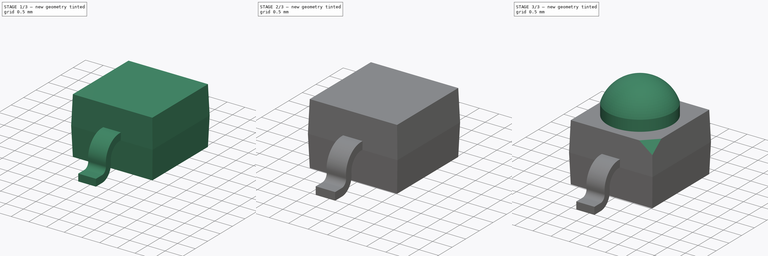
[diagram: build sequence overview — one tinted view per stage of 3, left to right]
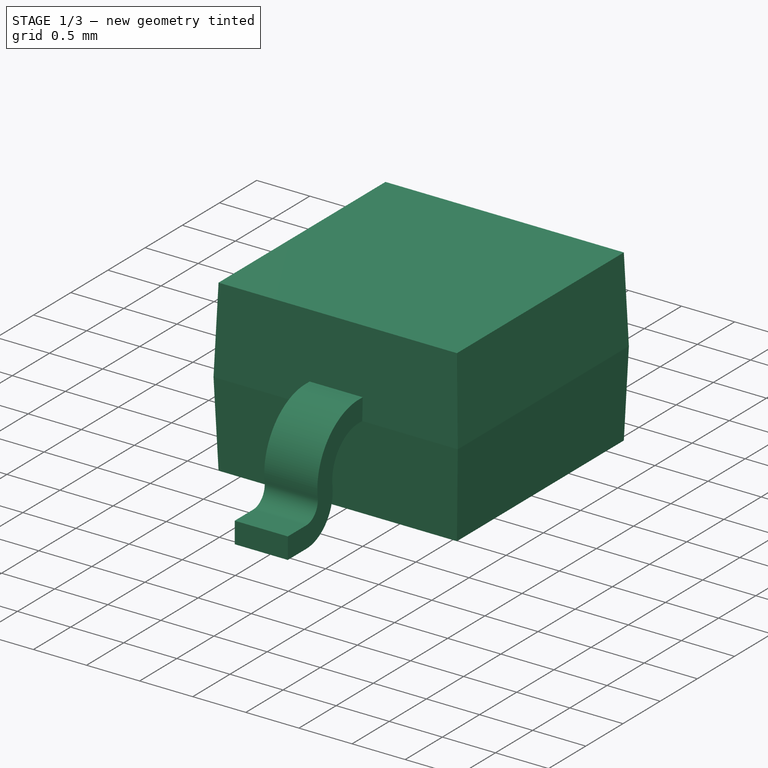
[diagram: stage 1 of 3 — iso view after this stage's code; geometry added in this stage tinted green]
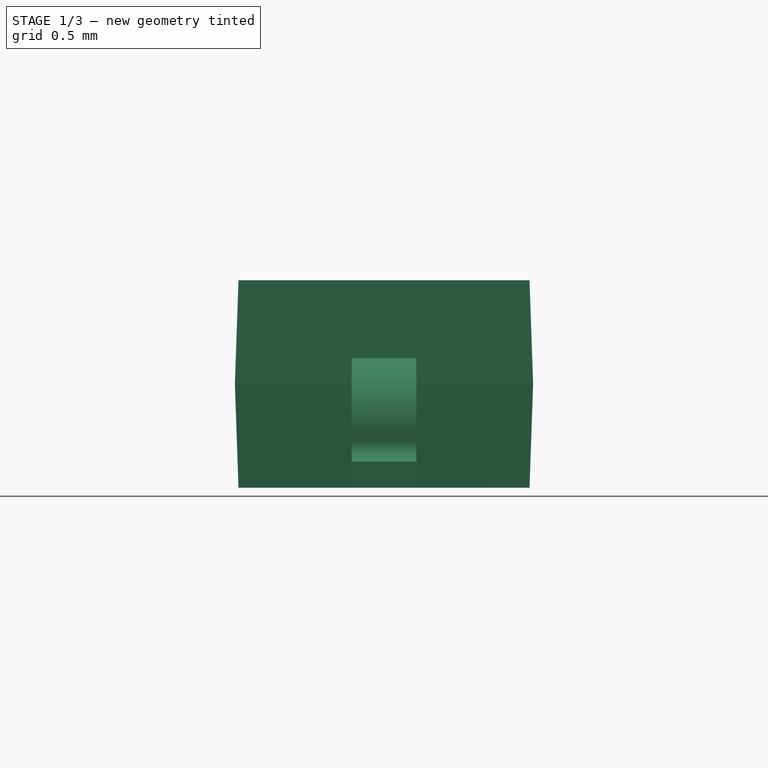
[diagram: stage 1 of 3 — front view after this stage's code; geometry added in this stage tinted green]
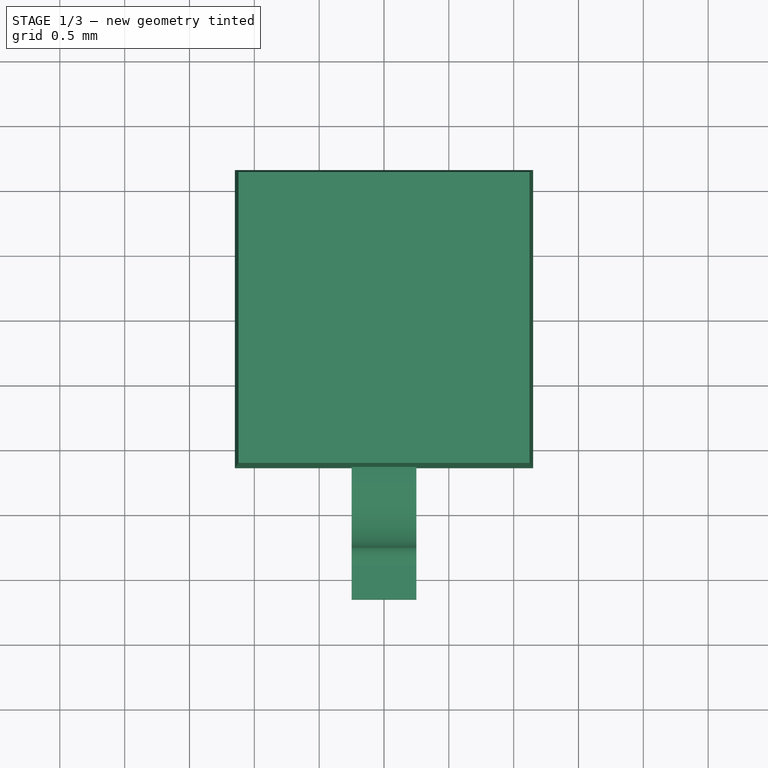
[diagram: stage 1 of 3 — top view after this stage's code; geometry added in this stage tinted green]
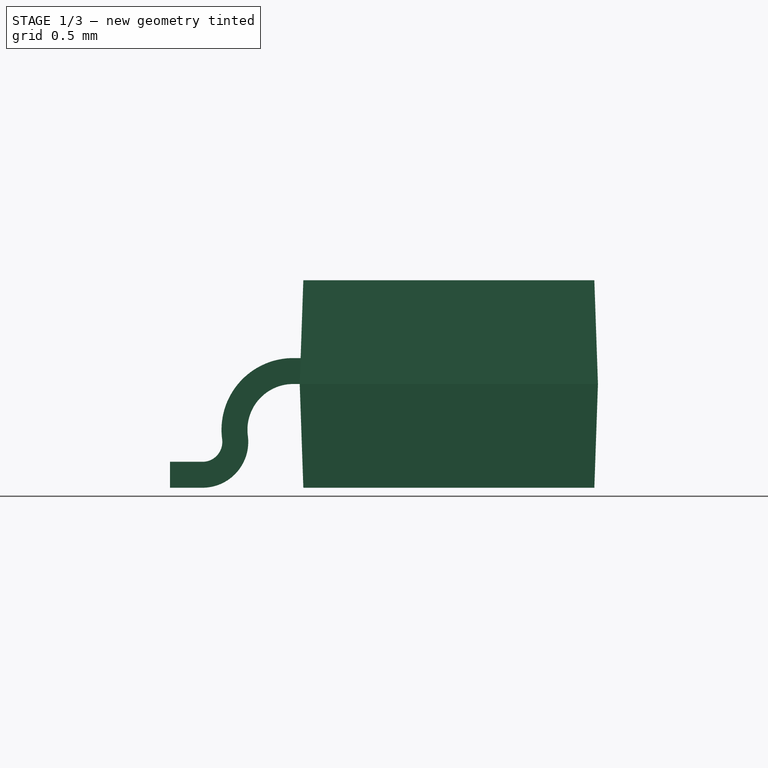
[diagram: stage 1 of 3 — right view after this stage's code; geometry added in this stage tinted green]
FCSTD DOCUMENT  (FreeCAD 0.21R33668 +26 (Git))
Label: VxMx
License: All rights reserved
LicenseURL: http://en.wikipedia.org/wiki/All_rights_reserved
objects: PartDesign::Plane×3, Sketcher::SketchObject×3, PartDesign::Pad×2, PartDesign::Mirrored×1, PartDesign::Pocket×1, PartDesign::Revolution×1, PartDesign::Body×1
note: 16 computed .brp shape members not serialized (recipe doc carries the construction recipe); baked Part::Feature solids carry a one-line shape summary decoded from their .brp

FEATURE [PartDesign::Plane] DatumPlane
  AttachmentOffset = pos=(0,0,0.8) rot=(0,0,1;0rad)
  Length = 60
  MapMode = 2
  Placement = pos=(0,0,0.8) rot=(0,0,1;0rad)
  ResizeMode = 0
  Support = -> [XY_Plane]
  Width = 60
FEATURE [Sketcher::SketchObject] Sketch
  FullyConstrained = true
  MapMode = 5
  Placement = pos=(0,0,0.8) rot=(0,0,1;0rad)
  Support = -> [DatumPlane]
  sketch-geometry (4):
    g0: LineSegment StartX=-1.15 StartY=1.15 StartZ=0 EndX=1.15 EndY=1.15 EndZ=0
    g1: LineSegment StartX=1.15 StartY=1.15 StartZ=0 EndX=1.15 EndY=-1.15 EndZ=0
    g2: LineSegment StartX=1.15 StartY=-1.15 StartZ=0 EndX=-1.15 EndY=-1.15 EndZ=0
    g3: LineSegment StartX=-1.15 StartY=-1.15 StartZ=0 EndX=-1.15 EndY=1.15 EndZ=0
  constraints (11):
    c: Coincident(g0,g1)
    c: Coincident(g1,g2)
    c: Coincident(g2,g3)
    c: Coincident(g3,g0)
    c: Horizontal(g0)
    c: Horizontal(g2)
    c: Vertical(g1)
    c: Vertical(g3)
    c: Symmetric(g0,g1,g-1)
    c: DistanceX(g0,g0) = 2.3
    c: DistanceY(g1,g1) = 2.3
FEATURE [PartDesign::Pad] Pad
  Direction = (0,0,1)
  Length = 1.6
  Length2 = 10
  Midplane = true
  Placement = pos=(0,0,0.8) rot=(0,0,1;0rad)
  Profile = -> Sketch
  ReferenceAxis = -> Sketch [N_Axis]
  TaperAngle = -2
  Type = 0
FEATURE [Sketcher::SketchObject] Sketch001
  FullyConstrained = true
  MapMode = 5
  Placement = pos=(0,0,0) rot=(1,0,0;1.5708rad)
  Support = -> [XZ_Plane]
  sketch-geometry (7):
    g0: LineSegment StartX=0 StartY=0 StartZ=0 EndX=0.9 EndY=0 EndZ=0
    g1: LineSegment StartX=0.9 StartY=0 StartZ=0 EndX=0.9 EndY=1.9 EndZ=0
    g2: LineSegment StartX=0.9 StartY=1.9 StartZ=0 EndX=0 EndY=1.9 EndZ=0
    g3: LineSegment StartX=0 StartY=1.9 StartZ=0 EndX=0 EndY=0 EndZ=0
    g4: LineSegment StartX=0 StartY=1.9 StartZ=0 EndX=1e-16 EndY=2.55 EndZ=0
    g5: GeomPoint X=0 Y=1.60192 Z=0
    g6: ArcOfCircle CenterX=0 CenterY=1.60192 CenterZ=0 NormalX=0 NormalY=0 NormalZ=1 AngleXU=0 Radius=0.948077 StartAngle=0.319826 EndAngle=1.5708
  constraints (18):
    c: Coincident(g0,g1)
    c: Coincident(g1,g2)
    c: Coincident(g2,g3)
    c: Coincident(g3,g0)
    c: Horizontal(g0)
    c: Horizontal(g2)
    c: Vertical(g1)
    c: Vertical(g3)
    c: Coincident(g0,g-1)
    c: Coincident(g4,g2)
    c: PointOnObject(g4,g-2)
    c: DistanceY(g0,g4) = 2.55
    c: DistanceY(g0,g1) = 1.9
    c: DistanceX(g2,g2) = 0.9
    c: PointOnObject(g5,g3)
    c: Coincident(g6,g5)
    c: Coincident(g6,g4)
    c: Coincident(g6,g1)
FEATURE [Sketcher::SketchObject] Sketch002
  FullyConstrained = true
  MapMode = 5
  Placement = pos=(0,0,0) rot=(0.57735,0.57735,0.57735;2.0944rad)
  Support = -> [YZ_Plane]
  sketch-geometry (12):
    g0: LineSegment StartX=-1.1 StartY=1 StartZ=0 EndX=-1.2 EndY=1 EndZ=0
    g1: ArcOfCircle CenterX=-1.2 CenterY=0.446876 CenterZ=0 NormalX=0 NormalY=0 NormalZ=1 AngleXU=0 Radius=0.553124 StartAngle=1.5708 EndAngle=3.27473
    g2: ArcOfCircle CenterX=-1.9 CenterY=0.353124 CenterZ=0 NormalX=0 NormalY=0 NormalZ=1 AngleXU=0 Radius=0.153124 StartAngle=4.71238 EndAngle=6.41632
    g3: ArcOfCircle CenterX=-1.9 CenterY=0.353124 CenterZ=0 NormalX=0 NormalY=0 NormalZ=1 AngleXU=0 Radius=0.353124 StartAngle=4.71239 EndAngle=6.41632
    g4: ArcOfCircle CenterX=-1.2 CenterY=0.446876 CenterZ=0 NormalX=0 NormalY=0 NormalZ=1 AngleXU=0 Radius=0.353124 StartAngle=1.5708 EndAngle=3.27473
    g5: LineSegment StartX=-1.2 StartY=0.8 StartZ=0 EndX=-1.1 EndY=0.8 EndZ=0
    g6: LineSegment StartX=-1.1 StartY=0.8 StartZ=0 EndX=-1.1 EndY=1 EndZ=0
    g7: LineSegment StartX=-1.2 StartY=0.8 StartZ=0 EndX=-1.2 EndY=1 EndZ=0
    g8: LineSegment StartX=-1.9 StartY=0.2 StartZ=0 EndX=-2.15 EndY=0.2 EndZ=0
    g9: LineSegment StartX=-2.15 StartY=0.2 StartZ=0 EndX=-2.15 EndY=0 EndZ=0
    g10: LineSegment StartX=-2.15 StartY=0 StartZ=0 EndX=-1.9 EndY=0 EndZ=0
    g11: LineSegment StartX=-1.9 StartY=0 StartZ=0 EndX=-1.9 EndY=0.2 EndZ=0
  constraints (33):
    c: Horizontal(g0)
    c: Tangent(g1,g2) = 1.5708
    c: Coincident(g4,g1)
    c: Coincident(g5,g4)
    c: Horizontal(g5)
    c: Coincident(g6,g5)
    c: Coincident(g6,g0)
    c: Vertical(g6)
    c: Tangent(g3,g4) = 1.5708
    c: DistanceY(g6,g6) = 0.2
    c: Coincident(g3,g2)
    c: DistanceY(g3,g0) = 1
    c: Tangent(g1,g0) = -1.5708
    c: DistanceY(g3,g3) = 0.4
    c: DistanceX(g5,g-1) = 1.1
    c: Coincident(g7,g4)
    c: Coincident(g7,g0)
    c: Vertical(g7)
    c: Coincident(g8,g9)
    c: Coincident(g9,g10)
    c: Horizontal(g8)
    c: Horizontal(g10)
    c: Vertical(g9)
    c: Coincident(g8,g2)
    c: DistanceX(g8,g0) = 1.05
    c: DistanceX(g9,g3) = 0.6
    c: DistanceX(g8,g8) = 0.25
    c: Coincident(g10,g3)
    c: Coincident(g11,g3)
    c: Coincident(g11,g2)
    c: Vertical(g11)
    c: PointOnObject(g9,g-1)
    c: DistanceY(g9,g9) = 0.2
FEATURE [PartDesign::Pad] Pad001
  BaseFeature = -> Pad
  Direction = (1,-2e-16,3e-16)
  Length = 0.5
  Length2 = 10
  Midplane = true
  Placement = pos=(0,0,0.8) rot=(0,0,1;0rad)
  Profile = -> Sketch002
  ReferenceAxis = -> Sketch002 [N_Axis]
  Type = 0
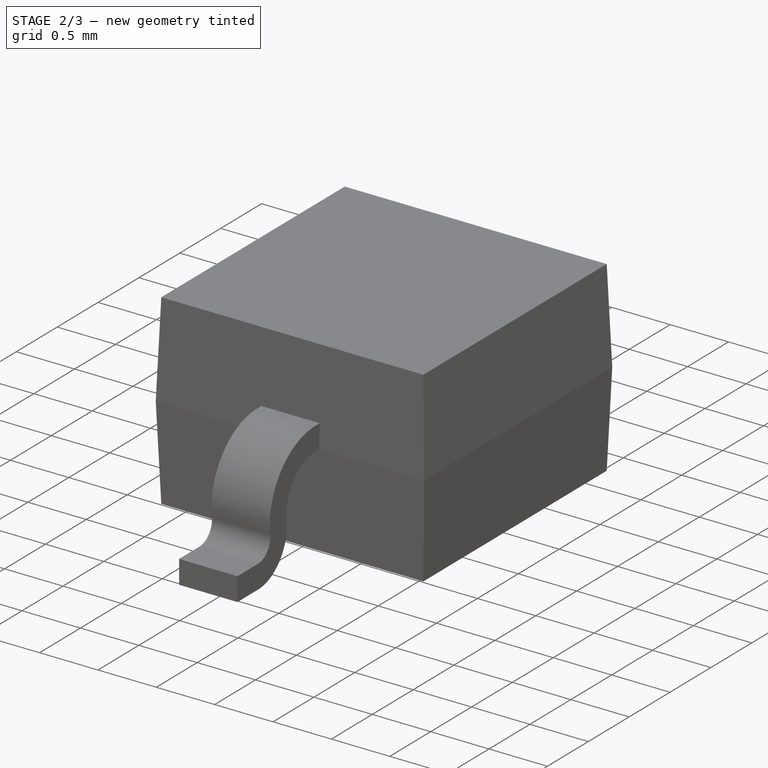
[diagram: stage 2 of 3 — iso view after this stage's code; geometry added in this stage tinted green]
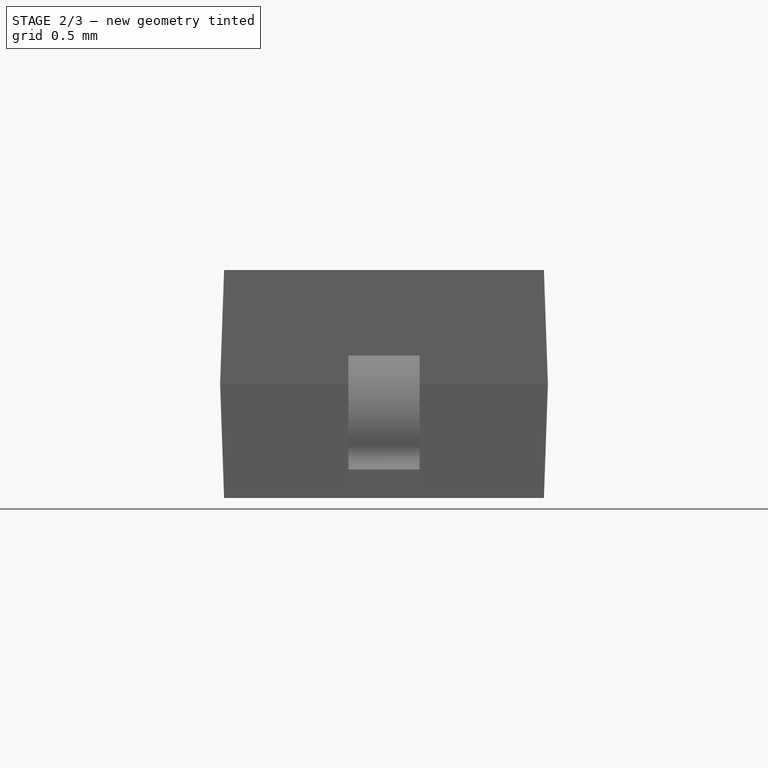
[diagram: stage 2 of 3 — front view after this stage's code; geometry added in this stage tinted green]
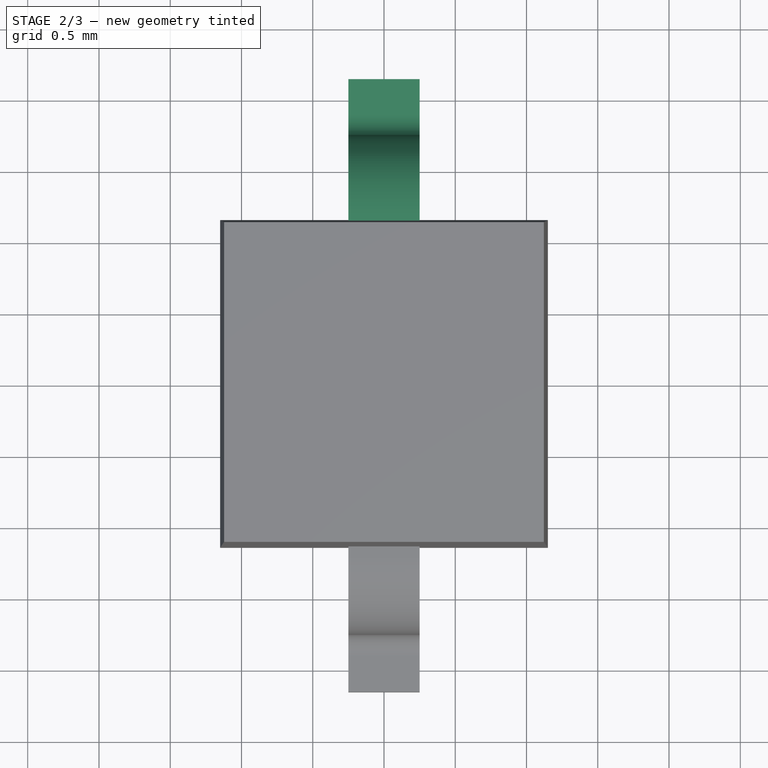
[diagram: stage 2 of 3 — top view after this stage's code; geometry added in this stage tinted green]
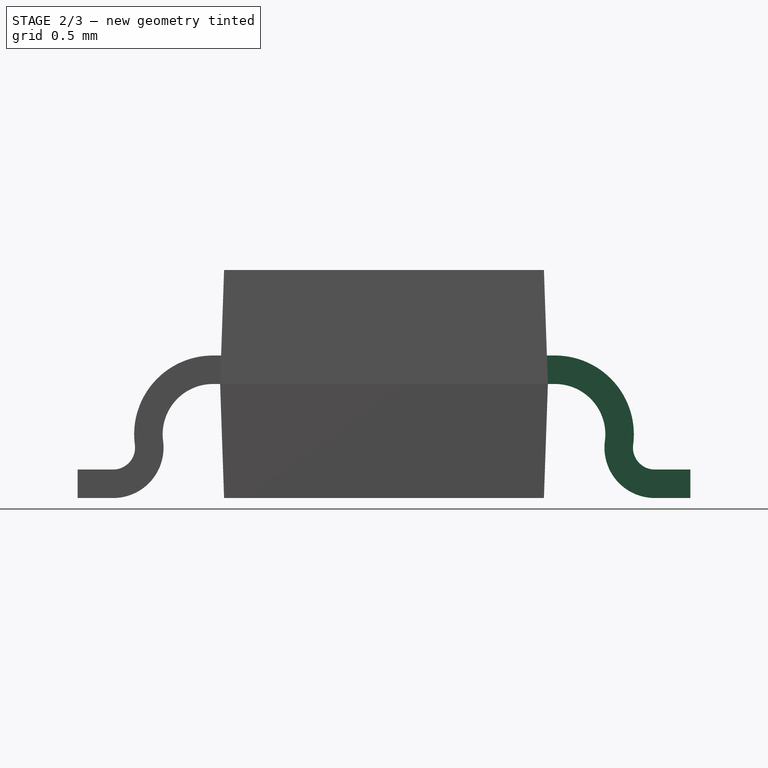
[diagram: stage 2 of 3 — right view after this stage's code; geometry added in this stage tinted green]
FEATURE [PartDesign::Mirrored] Mirrored
  BaseFeature = -> Pad001
  MirrorPlane = -> Sketch002 [V_Axis]
  Originals = -> [Pad001]
  Placement = pos=(0,0,0.8) rot=(0,0,1;0rad)
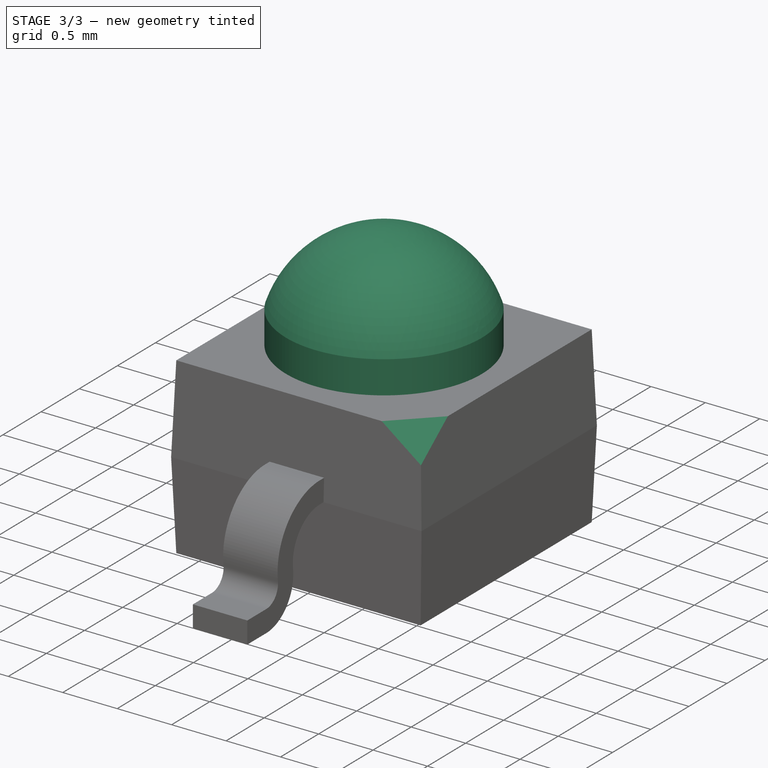
[diagram: stage 3 of 3 — iso view after this stage's code; geometry added in this stage tinted green]
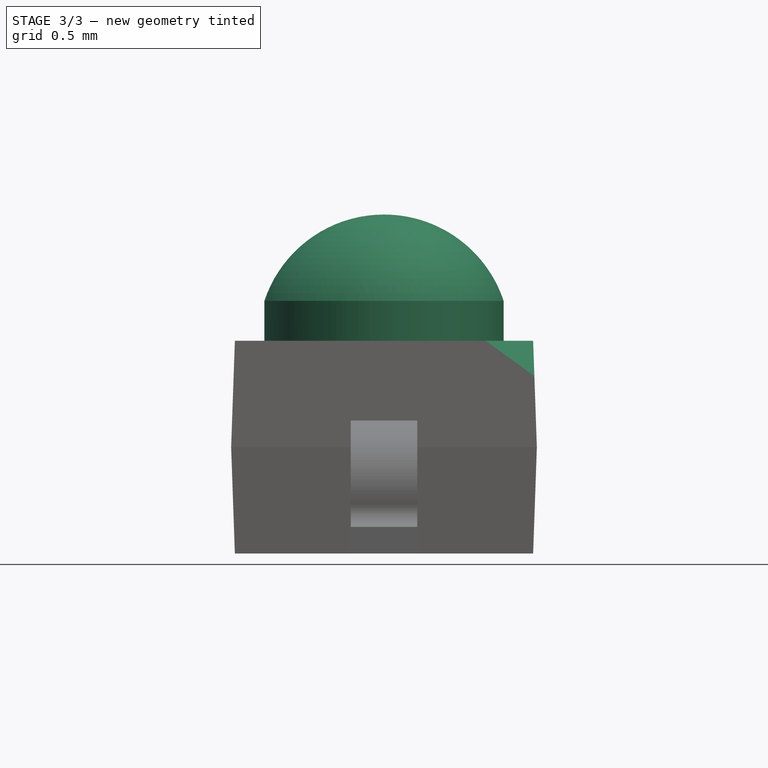
[diagram: stage 3 of 3 — front view after this stage's code; geometry added in this stage tinted green]
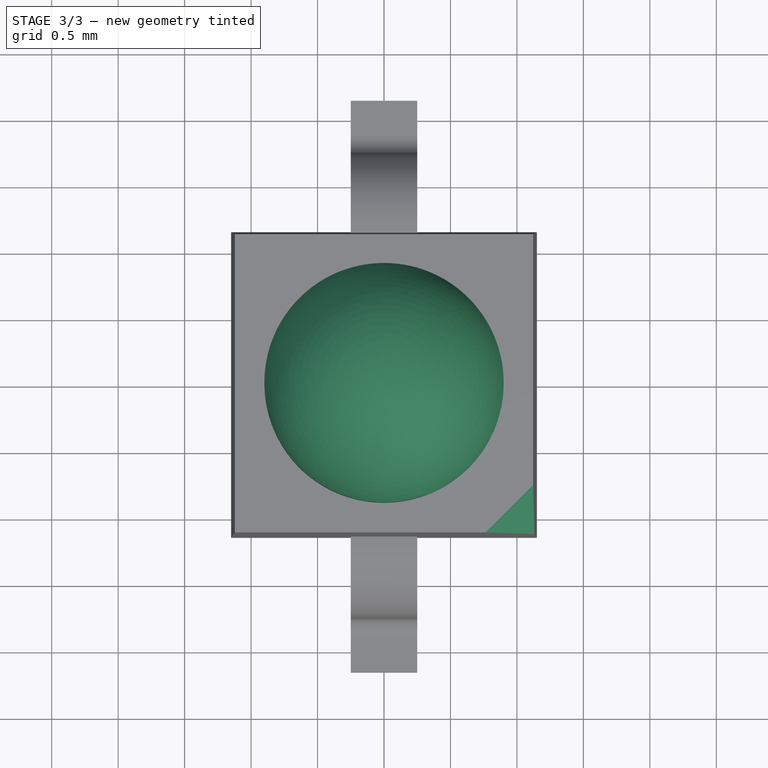
[diagram: stage 3 of 3 — top view after this stage's code; geometry added in this stage tinted green]
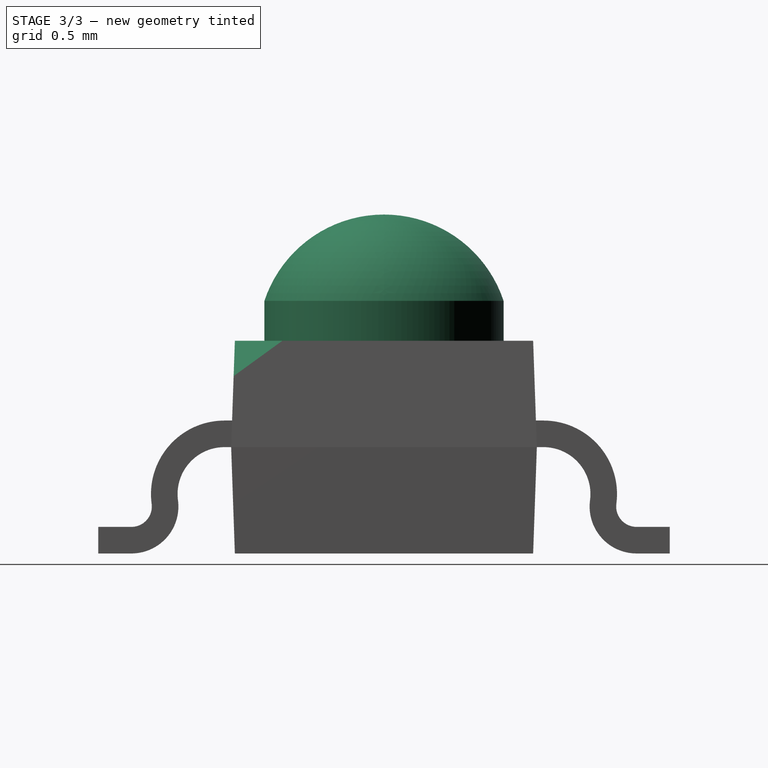
[diagram: stage 3 of 3 — right view after this stage's code; geometry added in this stage tinted green]
FEATURE [PartDesign::Plane] DatumPlane001
  AttachmentOffset = pos=(1.15,0,0) rot=(-0.678598,0.678598,0.281085;1.09606rad)
  Length = 86.2484
  MapMode = 5
  Placement = pos=(1.15,0,0) rot=(0.678598,0.281085,0.678598;1.09606rad)
  ResizeMode = 0
  Support = -> [XZ_Plane]
  Width = 100.893
FEATURE [PartDesign::Plane] DatumPlane002
  AttachmentOffset = pos=(0,0,1.5) rot=(0,0,1;0rad)
  Length = 86.2484
  MapMode = 2
  Placement = pos=(1.9,-0.75,1.06066) rot=(0.678598,0.281085,0.678598;1.09606rad)
  ResizeMode = 0
  Support = -> [DatumPlane001]
  Width = 100.893
FEATURE [PartDesign::Pocket] Pocket
  BaseFeature = -> Mirrored
  Direction = (-0.5,0.5,-0.707107)
  Length = 5
  Length2 = 5
  Placement = pos=(0,0,0.8) rot=(0,0,1;0rad)
  Profile = -> DatumPlane002
  Reversed = true
  Type = 1
FEATURE [PartDesign::Revolution] Revolution
  Angle = 360
  Axis = (0,2e-16,1)
  Base = (0,0,0)
  BaseFeature = -> Pocket
  Placement = pos=(0,0,0.8) rot=(0,0,1;0rad)
  Profile = -> Sketch001
  ReferenceAxis = -> Sketch001 [V_Axis]
  Reversed = true
FEATURE [PartDesign::Body] Body
  Group = -> [DatumPlane,Sketch,Pad,Sketch001,Sketch002,Pad001,Mirrored,DatumPlane001,DatumPlane002,Pocket,Revolution]
  Origin = -> Origin
  Tip = -> Revolution
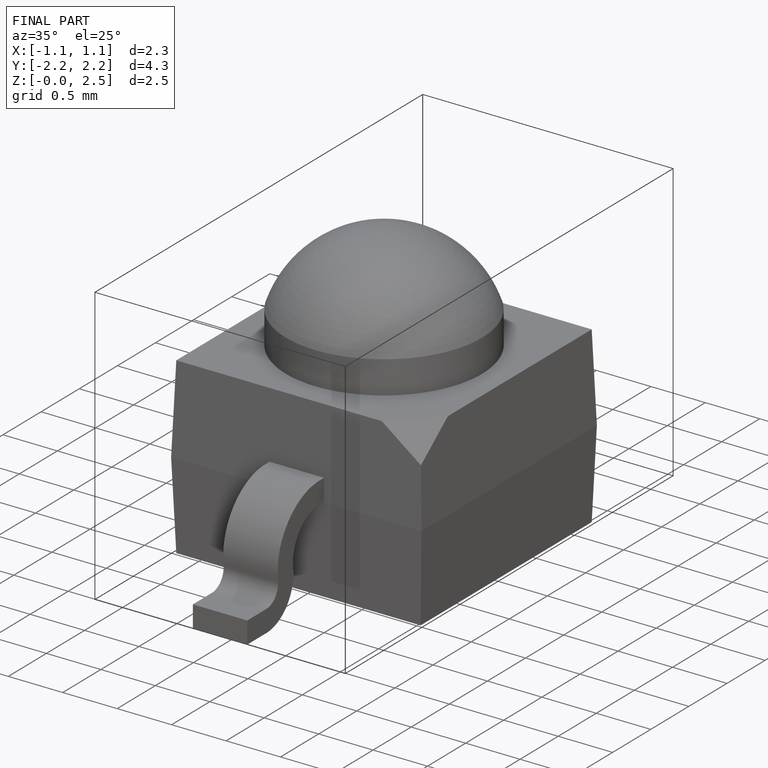
[diagram: finished part — iso view with bounding-box wireframe]
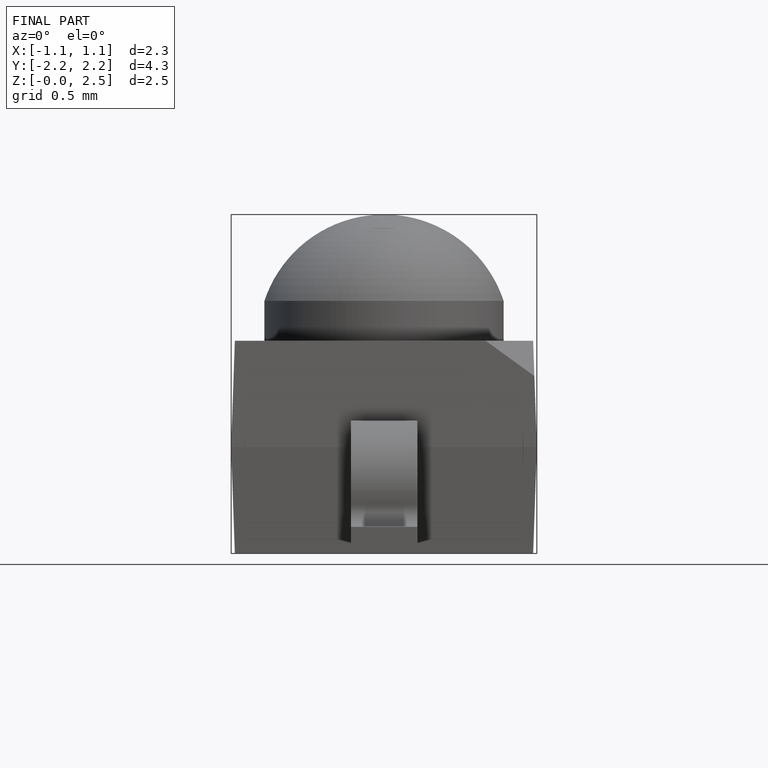
[diagram: finished part — front view with bounding-box wireframe]
